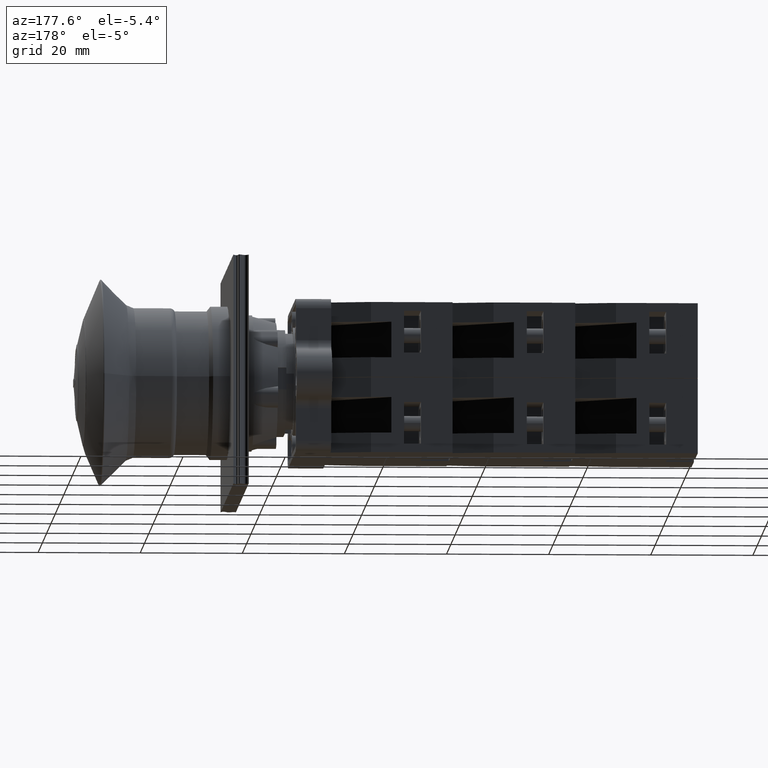
[diagram: clean part render]
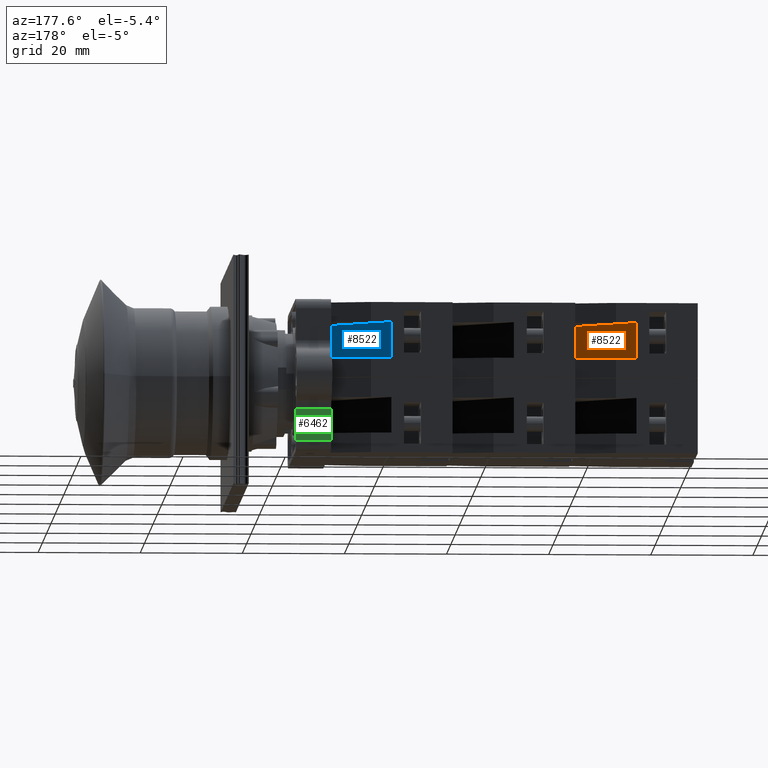
[diagram: same view with three faces highlighted in distinct colors, each labeled with its STEP entity id]
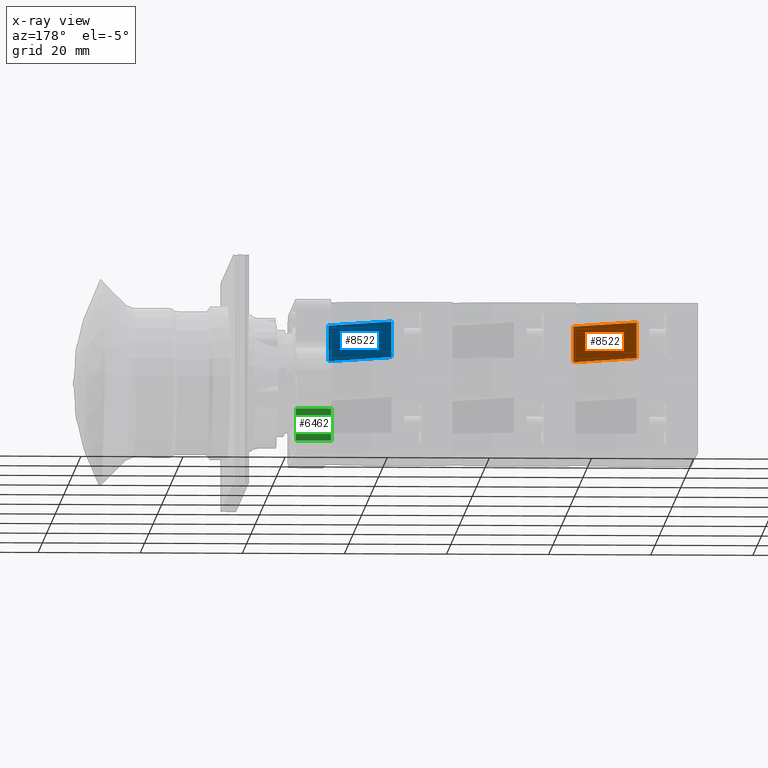
[diagram: x-ray of the same camera — body ghosted, the three highlighted faces saturated]
A machine part, auxiliary view with three faces highlighted in distinct colors.
The next image is the same camera in x-ray (body ghosted, the three faces saturated) — at least one of them is partly hidden behind the body in this view.
Their STEP definitions:

[orange] entity #8522 — the highlighted planar face has unit normal (-0.6, -0.8, -0).
#8467=CARTESIAN_POINT('',(-24.936741828918464,-0.202926676720378,10.850000000000000));
#8468=VERTEX_POINT('',#8467);
#8475=CARTESIAN_POINT('',(-15.936741828918466,11.797073323279626,10.850000000000000));
#8476=VERTEX_POINT('',#8475);
#8477=CARTESIAN_POINT('',(-24.936741828918464,-0.202926676720378,10.850000000000000));
#8478=DIRECTION('',(0.600000000000000,0.800000000000000,0.0));
#8479=VECTOR('',#8478,15.000000000000002);
#8480=LINE('',#8477,#8479);
#8481=EDGE_CURVE('',#8468,#8476,#8480,.T.);
#8492=CARTESIAN_POINT('',(-15.936741828918466,11.797073323279626,7.350000000000000));
#8493=DIRECTION('',(-0.800000000000000,0.600000000000000,0.0));
#8494=DIRECTION('',(0.0,0.0,1.0));
#8495=AXIS2_PLACEMENT_3D('',#8492,#8493,#8494);
#8496=PLANE('',#8495);
#8497=CARTESIAN_POINT('',(-15.936741828918466,11.797073323279626,3.850000000000001));
#8498=VERTEX_POINT('',#8497);
#8499=CARTESIAN_POINT('',(-24.936741828918464,-0.202926676720378,3.850000000000001));
#8500=VERTEX_POINT('',#8499);
#8501=CARTESIAN_POINT('',(-15.936741828918466,11.797073323279626,3.850000000000001));
#8502=DIRECTION('',(-0.600000000000000,-0.800000000000000,0.0));
#8503=VECTOR('',#8502,15.000000000000002);
#8504=LINE('',#8501,#8503);
#8505=EDGE_CURVE('',#8498,#8500,#8504,.T.);
#8506=ORIENTED_EDGE('',*,*,#8505,.F.);
#8507=CARTESIAN_POINT('',(-15.936741828918466,11.797073323279626,10.850000000000000));
#8508=DIRECTION('',(0.0,0.0,-1.0));
#8509=VECTOR('',#8508,6.999999999999999);
#8510=LINE('',#8507,#8509);
#8511=EDGE_CURVE('',#8476,#8498,#8510,.T.);
#8512=ORIENTED_EDGE('',*,*,#8511,.F.);
#8513=ORIENTED_EDGE('',*,*,#8481,.F.);
#8514=CARTESIAN_POINT('',(-24.936741828918464,-0.202926676720378,3.850000000000001));
#8515=DIRECTION('',(0.0,0.0,1.0));
#8516=VECTOR('',#8515,6.999999999999999);
#8517=LINE('',#8514,#8516);
#8518=EDGE_CURVE('',#8500,#8468,#8517,.T.);
#8519=ORIENTED_EDGE('',*,*,#8518,.F.);
#8520=EDGE_LOOP('',(#8506,#8512,#8513,#8519));
#8521=FACE_OUTER_BOUND('',#8520,.T.);
#8522=ADVANCED_FACE('',(#8521),#8496,.F.);

[blue] entity #8522 — the highlighted planar face has unit normal (-0.6, -0.8, -0).
#8467=CARTESIAN_POINT('',(-24.936741828918464,-0.202926676720378,10.850000000000000));
#8468=VERTEX_POINT('',#8467);
#8475=CARTESIAN_POINT('',(-15.936741828918466,11.797073323279626,10.850000000000000));
#8476=VERTEX_POINT('',#8475);
#8477=CARTESIAN_POINT('',(-24.936741828918464,-0.202926676720378,10.850000000000000));
#8478=DIRECTION('',(0.600000000000000,0.800000000000000,0.0));
#8479=VECTOR('',#8478,15.000000000000002);
#8480=LINE('',#8477,#8479);
#8481=EDGE_CURVE('',#8468,#8476,#8480,.T.);
#8492=CARTESIAN_POINT('',(-15.936741828918466,11.797073323279626,7.350000000000000));
#8493=DIRECTION('',(-0.800000000000000,0.600000000000000,0.0));
#8494=DIRECTION('',(0.0,0.0,1.0));
#8495=AXIS2_PLACEMENT_3D('',#8492,#8493,#8494);
#8496=PLANE('',#8495);
#8497=CARTESIAN_POINT('',(-15.936741828918466,11.797073323279626,3.850000000000001));
#8498=VERTEX_POINT('',#8497);
#8499=CARTESIAN_POINT('',(-24.936741828918464,-0.202926676720378,3.850000000000001));
#8500=VERTEX_POINT('',#8499);
#8501=CARTESIAN_POINT('',(-15.936741828918466,11.797073323279626,3.850000000000001));
#8502=DIRECTION('',(-0.600000000000000,-0.800000000000000,0.0));
#8503=VECTOR('',#8502,15.000000000000002);
#8504=LINE('',#8501,#8503);
#8505=EDGE_CURVE('',#8498,#8500,#8504,.T.);
#8506=ORIENTED_EDGE('',*,*,#8505,.F.);
#8507=CARTESIAN_POINT('',(-15.936741828918466,11.797073323279626,10.850000000000000));
#8508=DIRECTION('',(0.0,0.0,-1.0));
#8509=VECTOR('',#8508,6.999999999999999);
#8510=LINE('',#8507,#8509);
#8511=EDGE_CURVE('',#8476,#8498,#8510,.T.);
#8512=ORIENTED_EDGE('',*,*,#8511,.F.);
#8513=ORIENTED_EDGE('',*,*,#8481,.F.);
#8514=CARTESIAN_POINT('',(-24.936741828918464,-0.202926676720378,3.850000000000001));
#8515=DIRECTION('',(0.0,0.0,1.0));
#8516=VECTOR('',#8515,6.999999999999999);
#8517=LINE('',#8514,#8516);
#8518=EDGE_CURVE('',#8500,#8468,#8517,.T.);
#8519=ORIENTED_EDGE('',*,*,#8518,.F.);
#8520=EDGE_LOOP('',(#8506,#8512,#8513,#8519));
#8521=FACE_OUTER_BOUND('',#8520,.T.);
#8522=ADVANCED_FACE('',(#8521),#8496,.F.);

[green] entity #6462 — the highlighted planar face has unit normal (0, 1, -0).
#3360=CARTESIAN_POINT('',(-24.189626604047163,15.452596766800632,0.0));
#3361=VERTEX_POINT('',#3360);
#3369=CARTESIAN_POINT('',(-17.897830536546543,15.452596766800637,0.0));
#3370=VERTEX_POINT('',#3369);
#3371=CARTESIAN_POINT('',(-24.189626604047163,15.452596766800632,0.0));
#3372=DIRECTION('',(1.0,0.0,0.0));
#3373=VECTOR('',#3372,6.291796067500620);
#3374=LINE('',#3371,#3373);
#3375=EDGE_CURVE('',#3361,#3370,#3374,.T.);
#6432=CARTESIAN_POINT('',(-24.189626604047163,15.452596766800632,0.0));
#6433=DIRECTION('',(0.0,1.0,0.0));
#6434=DIRECTION('',(0.0,0.0,1.0));
#6435=AXIS2_PLACEMENT_3D('',#6432,#6433,#6434);
#6436=PLANE('',#6435);
#6437=CARTESIAN_POINT('',(-24.189626604047163,15.452596766800632,6.900000000000000));
#6438=VERTEX_POINT('',#6437);
#6439=CARTESIAN_POINT('',(-17.897830536546543,15.452596766800637,6.900000000000000));
#6440=VERTEX_POINT('',#6439);
#6441=CARTESIAN_POINT('',(-24.189626604047163,15.452596766800632,6.900000000000000));
#6442=DIRECTION('',(1.0,0.0,0.0));
#6443=VECTOR('',#6442,6.291796067500620);
#6444=LINE('',#6441,#6443);
#6445=EDGE_CURVE('',#6438,#6440,#6444,.T.);
#6446=ORIENTED_EDGE('',*,*,#6445,.T.);
#6447=CARTESIAN_POINT('',(-17.897830536546543,15.452596766800637,0.0));
#6448=DIRECTION('',(0.0,0.0,1.0));
#6449=VECTOR('',#6448,6.900000000000000);
#6450=LINE('',#6447,#6449);
#6451=EDGE_CURVE('',#3370,#6440,#6450,.T.);
#6452=ORIENTED_EDGE('',*,*,#6451,.F.);
#6453=ORIENTED_EDGE('',*,*,#3375,.F.);
#6454=CARTESIAN_POINT('',(-24.189626604047163,15.452596766800632,0.0));
#6455=DIRECTION('',(0.0,0.0,1.0));
#6456=VECTOR('',#6455,6.900000000000000);
#6457=LINE('',#6454,#6456);
#6458=EDGE_CURVE('',#3361,#6438,#6457,.T.);
#6459=ORIENTED_EDGE('',*,*,#6458,.T.);
#6460=EDGE_LOOP('',(#6446,#6452,#6453,#6459));
#6461=FACE_OUTER_BOUND('',#6460,.T.);
#6462=ADVANCED_FACE('',(#6461),#6436,.T.);